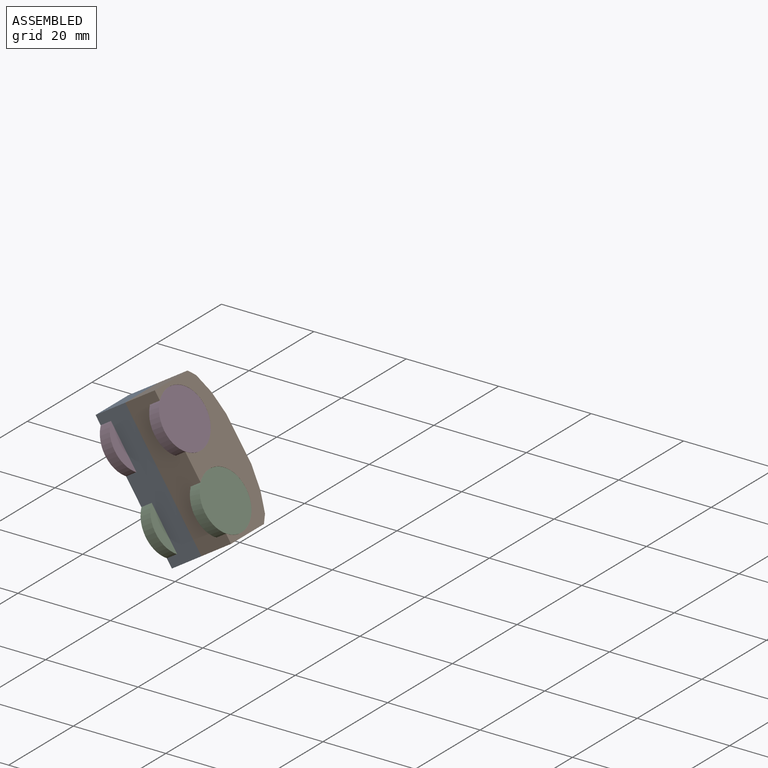
[diagram: assembled view]
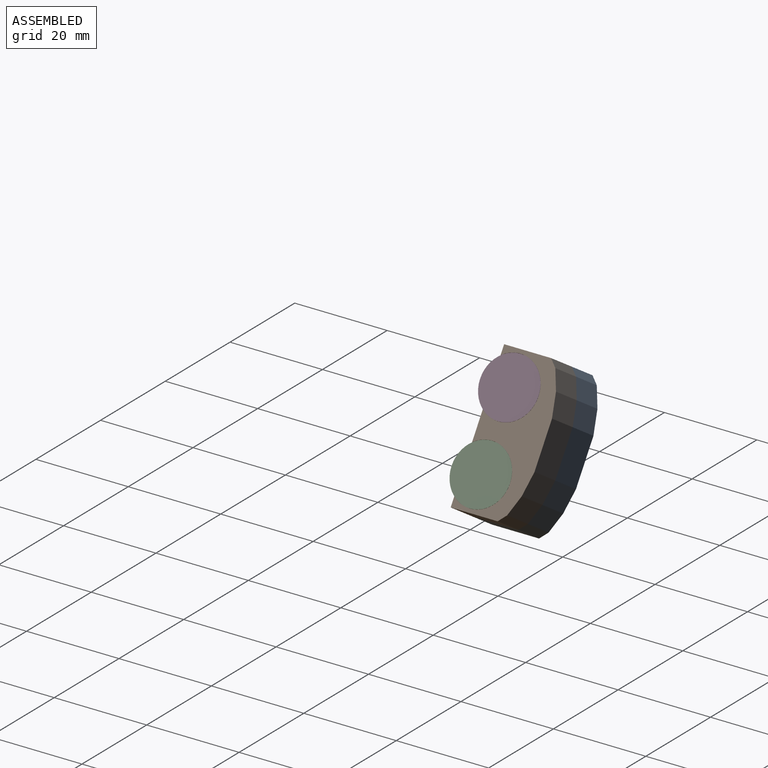
[diagram: assembled view, second angle]
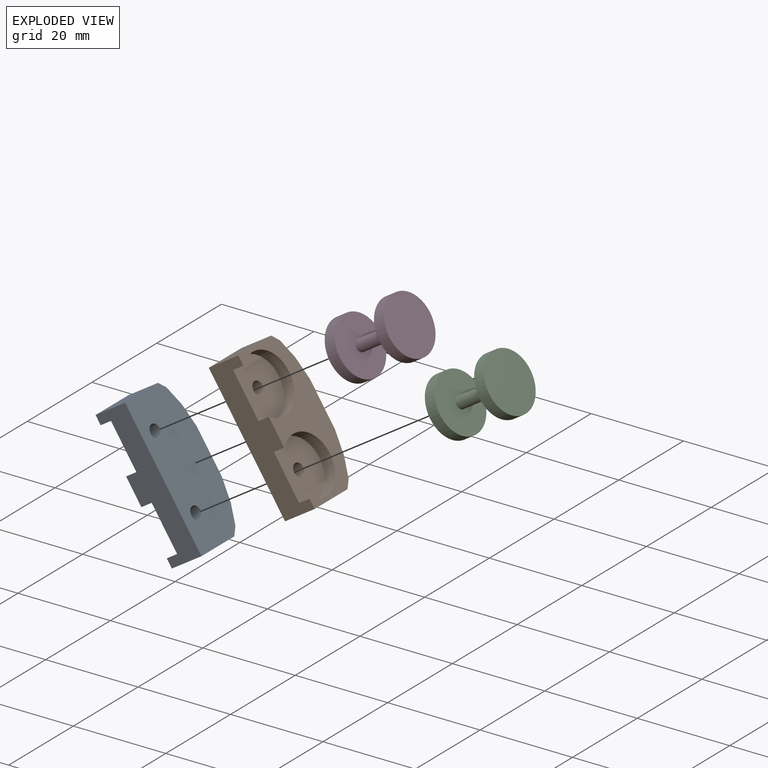
[diagram: exploded view]
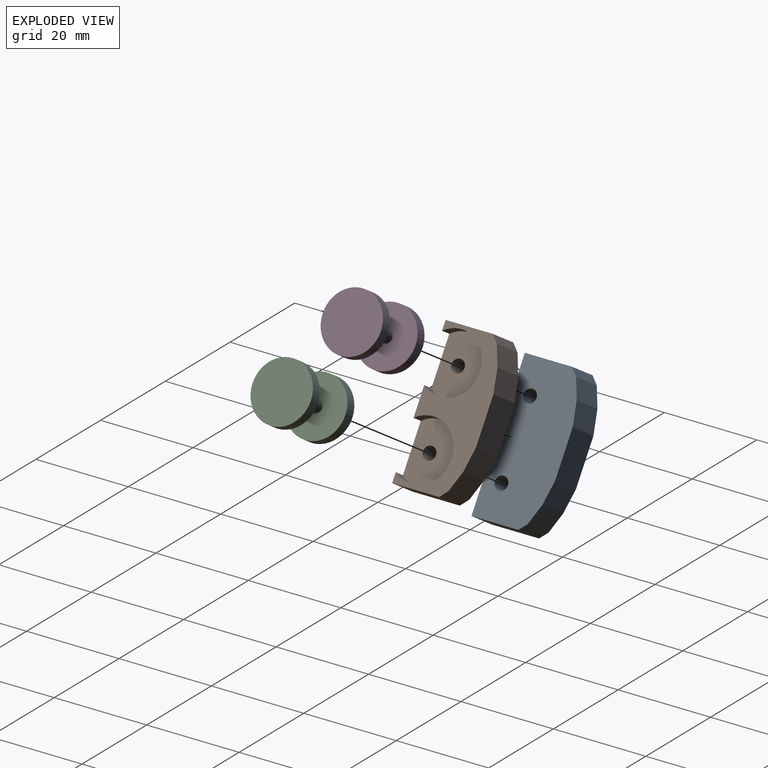
[diagram: exploded view, second angle]
ASSEMBLY  parts=4 mates=3
PART A: 18 faces, bbox 30.5x14.2x7.6 mm
  f0: plane 30.48x7.62mm, normal (0,-1,0), area 178.1mm2, adj f1,f2,f4,f6,f7,f8,f9,f10
  f1: plane 30.48x14.25mm, normal (0,0,-1), area 188.4mm2, adj f0,f2,f4,f7,f9,f11,f12,f13
  f2: plane 10.16x7.62mm, normal (1,0,0), area 77.4mm2, adj f0,f1,f6,f11
  f3: cylinder r=1.4mm len=4.95mm, axis (0,0,-1), area 43.5mm2, adj f6,f8
  f4: plane 10.16x7.62mm, normal (-1,0,0), area 77.4mm2, adj f0,f1,f6,f12
  f5: cylinder r=1.4mm len=4.95mm, axis (0,0,-1), area 43.5mm2, adj f6,f10
  f6: plane 30.48x14.25mm, normal (0,0,1), area 393.4mm2, adj f0,f2,f3,f4,f5,f11,f12,f13
  f7: cylinder r=6.35mm len=12.7mm, axis (0,0,-1), area 75mm2, adj f0,f1,f8
  f8: plane 12.7x10.16mm, normal (0,0,-1), area 102.5mm2, adj f0,f3,f7
  f9: cylinder r=6.35mm len=12.7mm, axis (0,0,-1), area 75mm2, adj f0,f1,f10
  f10: plane 12.7x10.16mm, normal (0,0,-1), area 102.5mm2, adj f0,f5,f9
  f11: plane 7.62x1.49mm, normal (0.71,0.71,0), area 16mm2, adj f1,f2,f6,f13
  f12: plane 7.62x1.49mm, normal (-0.71,0.71,0), area 16mm2, adj f1,f4,f6,f14
  f13: plane 7.62x3.98mm, normal (0.38,0.92,0), area 32.8mm2, adj f1,f6,f11,f16
  f14: plane 7.62x3.98mm, normal (-0.38,0.92,0), area 32.8mm2, adj f1,f6,f12,f15
  f15: plane 7.62x4.79mm, normal (-0.2,0.98,0), area 37.2mm2, adj f1,f6,f14,f17
  f16: plane 7.62x4.79mm, normal (0.2,0.98,0), area 37.2mm2, adj f1,f6,f13,f17
  f17: plane 9.96x7.62mm, normal (0,1,0), area 75.9mm2, adj f1,f6,f15,f16
PART B: same geometry as A
PART C: 7 faces, bbox 15.2x12.6x12.6 mm
  f0: plane 12.65x12.65mm, normal (-1,0,0), area 125.7mm2, adj f1
  f1: cylinder r=6.32mm len=12.65mm, axis (1,0,0), area 100.9mm2, adj f0,f2
  f2: plane 12.65x12.65mm, normal (1,0,0), area 120.6mm2, adj f1,f3
  f3: cone r=1.27mm half-angle=0deg, axis (-1,0,0), area 81.1mm2, adj f2,f4
  f4: cone r=6.32mm half-angle=90deg, axis (-1,0,0), area 120.6mm2, adj f3,f5
  f5: cylinder r=6.32mm len=12.65mm, axis (1,0,0), area 100.9mm2, adj f4,f6
  f6: cone r=6.32mm half-angle=90deg, axis (-1,0,0), area 125.7mm2, adj f5
PART D: same geometry as C
PLACE A rot(axis=(0,1,0),57.2deg) t=(-30.95,10.48,18.25)mm
PLACE B rot(axis=(0,-1,0),122.8deg) t=(-18.14,10.48,26.5)mm
PLACE C rot(axis=(0,-1,0),32.8deg) t=(-20.14,6.67,15.54)mm
PLACE D rot(axis=(-0.92,-0.27,-0.27),94.6deg) t=(-28.95,6.67,29.21)mm
MATE fastened B.f6 <-> A.f6  axis (-0.84,0,-0.54) through (-24.55,9.65,22.38)mm
MATE pin_slot C.f1 <-> B.f3  axis (-0.84,0,-0.54) through (-15.87,6.67,18.3)mm
MATE pin_slot D.f1 <-> A.f3  axis (-0.84,0,-0.54) through (-33.22,6.67,26.45)mm
